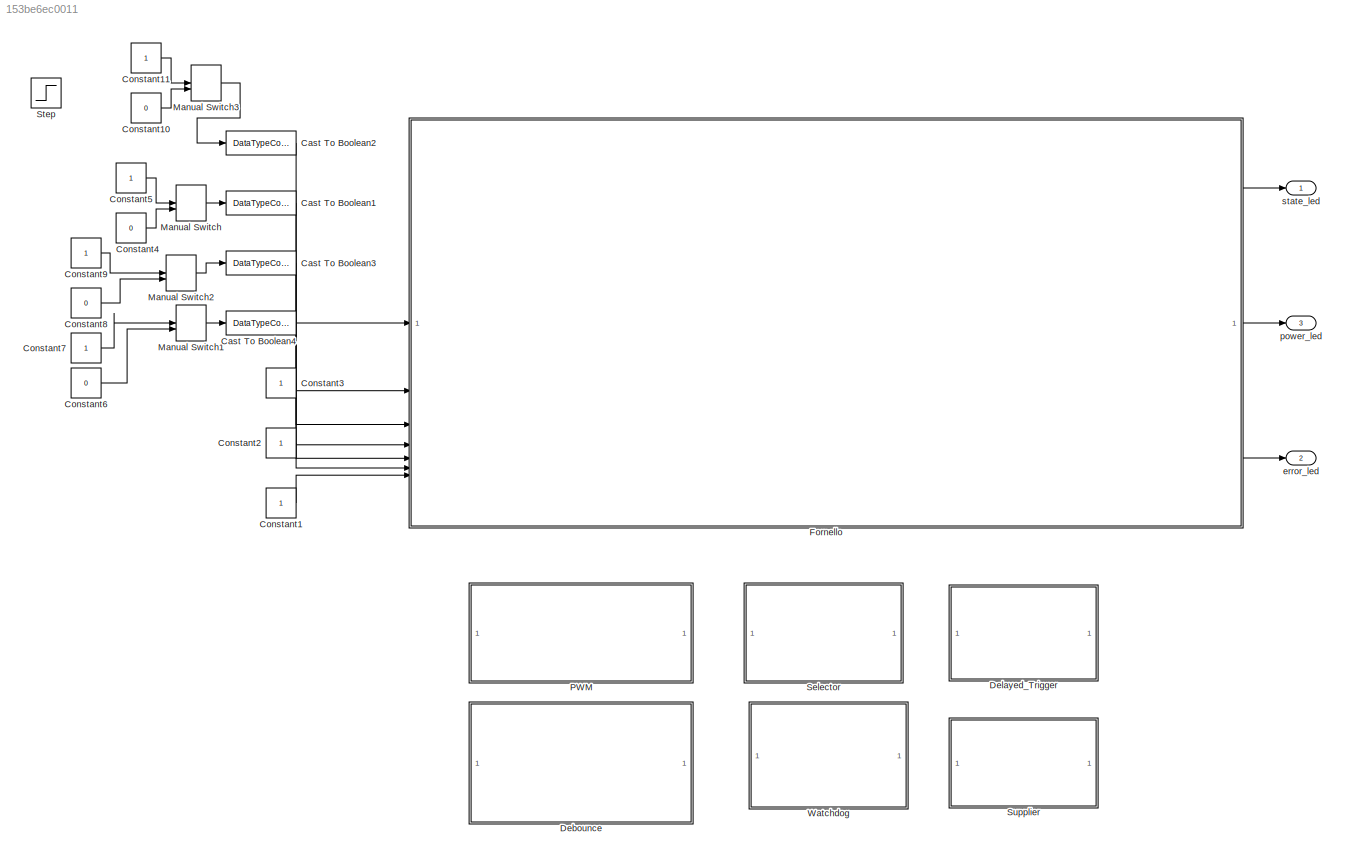
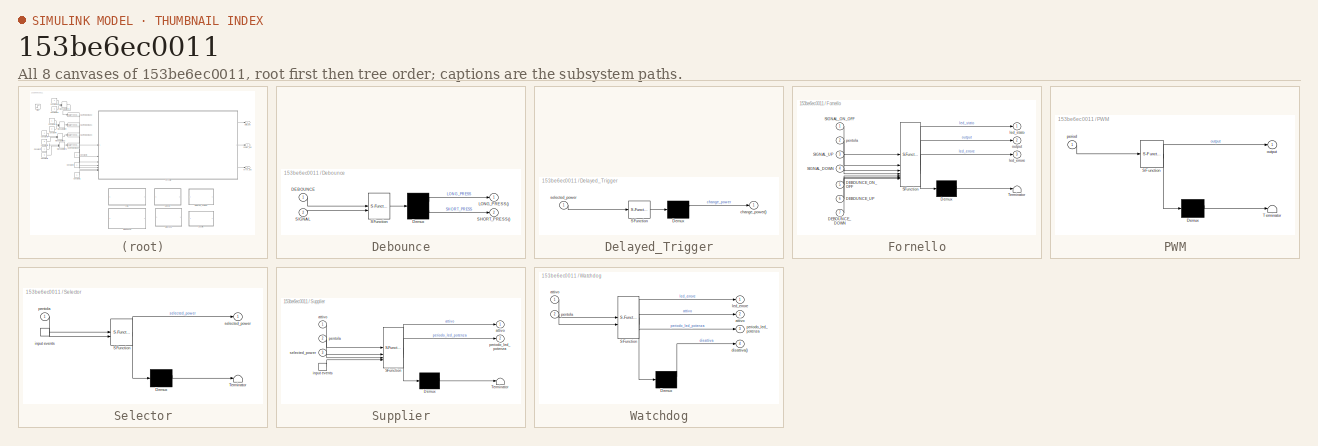
[diagram: thumbnail index - all 8 canvases of the model, root first then tree order]
MODEL slx_153be6ec0011
KIND model
CONFIG AbsTol = auto
CONFIG EnableMultiTasking = off
CONFIG FixedStep = 0.01
CONFIG MaxStep = 0.01
CONFIG MinStep = auto
CONFIG RelTol = 1e-3
CONFIG SampleTimeConstraint = Unconstrained
CONFIG SolverName = FixedStepAuto
CONFIG StartTime = 0.0
CONFIG StopTime = 20.0
BLOCK [DataTypeConversion] Cast To Boolean1
  OutDataTypeStr = boolean
  RndMeth = Nearest
  SaturateOnIntegerOverflow = off
BLOCK [DataTypeConversion] Cast To Boolean2
  OutDataTypeStr = boolean
  RndMeth = Nearest
  SaturateOnIntegerOverflow = off
BLOCK [DataTypeConversion] Cast To Boolean3
  OutDataTypeStr = boolean
  RndMeth = Nearest
  SaturateOnIntegerOverflow = off
BLOCK [DataTypeConversion] Cast To Boolean4
  OutDataTypeStr = boolean
  RndMeth = Nearest
  SaturateOnIntegerOverflow = off
BLOCK [Constant] Constant1
BLOCK [Constant] Constant10
  Value = 0
BLOCK [Constant] Constant11
BLOCK [Constant] Constant2
BLOCK [Constant] Constant3
BLOCK [Constant] Constant4
  Value = 0
BLOCK [Constant] Constant5
BLOCK [Constant] Constant6
  Value = 0
BLOCK [Constant] Constant7
BLOCK [Constant] Constant8
  Value = 0
BLOCK [Constant] Constant9
BLOCK [SubSystem] Debounce
  ErrorFcn = Stateflow.Translate.translate
  PermitHierarchicalResolution = ExplicitOnly
  SFBlockType = Chart
  TreatAsAtomicUnit = on
BLOCK [Demux] Debounce/ Demux 
  Outputs = 2
BLOCK [S-Function] Debounce/ SFunction 
  EnableBusSupport = on
  FunctionName = sf_sfun
  PortCounts = [2 1]
  SFcnIsStateOwnerBlock = off
  SFunctionDeploymentMode = off
  Tag = Stateflow S-Function 7
BLOCK [Inport] Debounce/DEBOUNCE
BLOCK [Outport] Debounce/LONG_PRESS()
BLOCK [Outport] Debounce/SHORT_PRESS()
  Port = 2
BLOCK [Inport] Debounce/SIGNAL
  Port = 2
BLOCK [SubSystem] Delayed_Trigger
  ErrorFcn = Stateflow.Translate.translate
  PermitHierarchicalResolution = ExplicitOnly
  SFBlockType = Chart
  TreatAsAtomicUnit = on
BLOCK [Demux] Delayed_Trigger/ Demux 
  Outputs = 1
BLOCK [S-Function] Delayed_Trigger/ SFunction 
  EnableBusSupport = on
  FunctionName = sf_sfun
  PortCounts = [1 1]
  SFcnIsStateOwnerBlock = off
  SFunctionDeploymentMode = off
  Tag = Stateflow S-Function 1
BLOCK [Outport] Delayed_Trigger/change_power()
BLOCK [Inport] Delayed_Trigger/selected_power
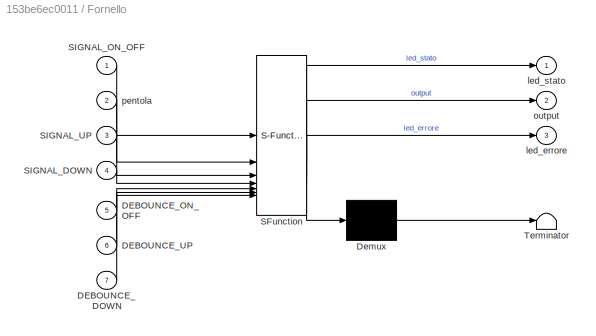
BLOCK [SubSystem] Fornello
  ErrorFcn = Stateflow.Translate.translate
  PermitHierarchicalResolution = ExplicitOnly
  SFBlockType = Chart
  TreatAsAtomicUnit = on
BLOCK [Demux] Fornello/ Demux 
  Outputs = 1
BLOCK [S-Function] Fornello/ SFunction 
  EnableBusSupport = on
  FunctionName = sf_sfun
  PortCounts = [7 4]
  SFcnIsStateOwnerBlock = off
  SFunctionDeploymentMode = off
  Tag = Stateflow S-Function 2
BLOCK [Terminator] Fornello/ Terminator 
BLOCK [Inport] Fornello/DEBOUNCE_DOWN
  Port = 7
BLOCK [Inport] Fornello/DEBOUNCE_ON_OFF
  Port = 5
BLOCK [Inport] Fornello/DEBOUNCE_UP
  Port = 6
BLOCK [Inport] Fornello/SIGNAL_DOWN
  Port = 4
BLOCK [Inport] Fornello/SIGNAL_ON_OFF
BLOCK [Inport] Fornello/SIGNAL_UP
  Port = 3
BLOCK [Outport] Fornello/led_errore
  Port = 3
BLOCK [Outport] Fornello/led_stato
BLOCK [Outport] Fornello/output
  Port = 2
BLOCK [Inport] Fornello/pentola
  Port = 2
BLOCK [ManualSwitch] Manual Switch
BLOCK [ManualSwitch] Manual Switch1
BLOCK [ManualSwitch] Manual Switch2
BLOCK [ManualSwitch] Manual Switch3
BLOCK [SubSystem] PWM
  ErrorFcn = Stateflow.Translate.translate
  PermitHierarchicalResolution = ExplicitOnly
  SFBlockType = Chart
  TreatAsAtomicUnit = on
BLOCK [Demux] PWM/ Demux 
  Outputs = 1
BLOCK [S-Function] PWM/ SFunction 
  EnableBusSupport = on
  FunctionName = sf_sfun
  PortCounts = [1 2]
  SFcnIsStateOwnerBlock = off
  SFunctionDeploymentMode = off
  Tag = Stateflow S-Function 6
BLOCK [Terminator] PWM/ Terminator 
BLOCK [Outport] PWM/output
BLOCK [Inport] PWM/period
BLOCK [SubSystem] Selector
  ErrorFcn = Stateflow.Translate.translate
  PermitHierarchicalResolution = ExplicitOnly
  SFBlockType = Chart
  TreatAsAtomicUnit = on
BLOCK [Demux] Selector/ Demux 
  Outputs = 1
BLOCK [S-Function] Selector/ SFunction 
  EnableBusSupport = on
  FunctionName = sf_sfun
  PortCounts = [2 2]
  SFcnIsStateOwnerBlock = off
  SFunctionDeploymentMode = off
  Tag = Stateflow S-Function 5
BLOCK [Terminator] Selector/ Terminator 
BLOCK [TriggerPort] Selector/input events
  ShowOutputPort = on
  StatesWhenEnabling = held
  TriggerType = function-call
  VariantControl = (inherit)
BLOCK [Inport] Selector/pentola
BLOCK [Outport] Selector/selected_power
BLOCK [Step] Step
  SampleTime = 0
  Time = 0
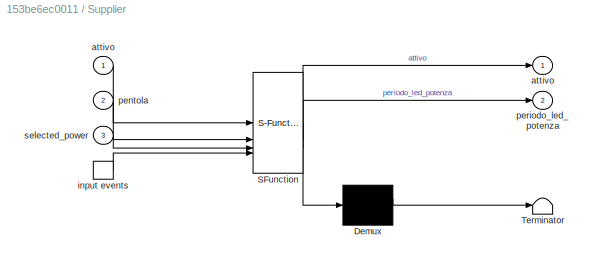
BLOCK [SubSystem] Supplier
  ErrorFcn = Stateflow.Translate.translate
  PermitHierarchicalResolution = ExplicitOnly
  SFBlockType = Chart
  TreatAsAtomicUnit = on
BLOCK [Demux] Supplier/ Demux 
  Outputs = 1
BLOCK [S-Function] Supplier/ SFunction 
  EnableBusSupport = on
  FunctionName = sf_sfun
  PortCounts = [4 3]
  SFcnIsStateOwnerBlock = off
  SFunctionDeploymentMode = off
  Tag = Stateflow S-Function 4
BLOCK [Terminator] Supplier/ Terminator 
BLOCK [Outport] Supplier/attivo
BLOCK [Inport] Supplier/attivo 
BLOCK [TriggerPort] Supplier/input events
  ShowOutputPort = on
  StatesWhenEnabling = held
  TriggerType = function-call
  VariantControl = (inherit)
BLOCK [Inport] Supplier/pentola
  Port = 2
BLOCK [Outport] Supplier/periodo_led_potenza
  Port = 2
BLOCK [Inport] Supplier/selected_power
  Port = 3
BLOCK [SubSystem] Watchdog
  ErrorFcn = Stateflow.Translate.translate
  PermitHierarchicalResolution = ExplicitOnly
  SFBlockType = Chart
  TreatAsAtomicUnit = on
BLOCK [Demux] Watchdog/ Demux 
  Outputs = 1
BLOCK [S-Function] Watchdog/ SFunction 
  EnableBusSupport = on
  FunctionName = sf_sfun
  PortCounts = [2 4]
  SFcnIsStateOwnerBlock = off
  SFunctionDeploymentMode = off
  Tag = Stateflow S-Function 3
BLOCK [Outport] Watchdog/attivo
  Port = 2
BLOCK [Inport] Watchdog/attivo 
BLOCK [Outport] Watchdog/disattiva()
  Port = 4
BLOCK [Outport] Watchdog/led_errore
BLOCK [Inport] Watchdog/pentola
  Port = 2
BLOCK [Outport] Watchdog/periodo_led_potenza
  Port = 3
BLOCK [Outport] error_led
  Port = 2
BLOCK [Outport] power_led
  Port = 3
BLOCK [Outport] state_led
LINE Cast To Boolean1:1 -> Fornello:2
LINE Cast To Boolean2:1 -> Fornello:1
LINE Cast To Boolean3:1 -> Fornello:3
LINE Cast To Boolean4:1 -> Fornello:4
LINE Constant10:1 -> Manual Switch3:2
LINE Constant11:1 -> Manual Switch3:1
LINE Constant1:1 -> Fornello:7
LINE Constant2:1 -> Fornello:6
LINE Constant3:1 -> Fornello:5
LINE Constant4:1 -> Manual Switch:2
LINE Constant5:1 -> Manual Switch:1
LINE Constant6:1 -> Manual Switch1:2
LINE Constant7:1 -> Manual Switch1:1
LINE Constant8:1 -> Manual Switch2:2
LINE Constant9:1 -> Manual Switch2:1
LINE Fornello:1 -> state_led:1
LINE Fornello:2 -> power_led:1
LINE Fornello:3 -> error_led:1
LINE Manual Switch1:1 -> Cast To Boolean4:1
LINE Manual Switch2:1 -> Cast To Boolean3:1
LINE Manual Switch3:1 -> Cast To Boolean2:1
LINE Manual Switch:1 -> Cast To Boolean1:1
CHART Test Assessment Block states=18 transitions=57
  STATE_LABEL 'Pressione_Pulsante_Lunga'
  STATE_LABEL 'Run'
  STATE_LABEL 'Verify_S1Init\nverify(LONG_PRESS==false & SHORT_PRESS==false)'
  STATE_LABEL 'Verify_S1ButtonLongPressed\nverify(LONG_PRESS==false & SHORT_PRESS==false);'
  STATE_LABEL 'Verify_S1LongPressedEvent\nverify((elapsed<0.01 & LONG_PRESS==true & SHORT_PRESS==false) || (elapsed>=0.01 & LONG_PRESS==false & SHORT_PRESS==false));'
  STATE_LABEL 'Step_end_1'
  STATE_LABEL '[Ts_Active_Step_In==Test_Sequence_Active_Step_Enum1.S1_Init\n]'
  STATE_LABEL '[~in(Pressione_Pulsante_Lunga.Run.Verify_S1Init)]'
  STATE_LABEL '[Ts_Active_Step_In==Test_Sequence_Active_Step_Enum1.S1_Button_long_pressed\n]'
  STATE_LABEL '[~in(Pressione_Pulsante_Lunga.Run.Verify_S1ButtonLongPressed)]'
  STATE_LABEL '[Ts_Active_Step_In==Test_Sequence_Active_Step_Enum1.S1_Button_Released\n]'
  STATE_LABEL '[~in(Pressione_Pulsante_Lunga.Run.Verify_S1LongPressedEvent)]'
  STATE_LABEL '[~in(Pressione_Pulsante_Lunga.Run.Step_end_1)]'
  STATE_LABEL 'Run'
  STATE_LABEL 'Verify_S1Init\nverify(LONG_PRESS==false & SHORT_PRESS==false)'
  STATE_LABEL 'Verify_S1ButtonLongPressed\nverify(LONG_PRESS==false & SHORT_PRESS==false);'
  STATE_LABEL 'Verify_S1LongPressedEvent\nverify((elapsed<0.01 & LONG_PRESS==true & SHORT_PRESS==false) || (elapsed>=0.01 & LONG_PRESS==false & SHORT_PRESS==false));'
  STATE_LABEL 'Step_end_1'
  STATE_LABEL '[Ts_Active_Step_In==Test_Sequence_Active_Step_Enum1.S1_Init\n]'
  STATE_LABEL '[~in(Pressione_Pulsante_Lunga.Run.Verify_S1Init)]'
  STATE_LABEL '[Ts_Active_Step_In==Test_Sequence_Active_Step_Enum1.S1_Button_long_pressed\n]'
  STATE_LABEL '[~in(Pressione_Pulsante_Lunga.Run.Verify_S1ButtonLongPressed)]'
  STATE_LABEL '[Ts_Active_Step_In==Test_Sequence_Active_Step_Enum1.S1_Button_Released\n]'
  STATE_LABEL '[~in(Pressione_Pulsante_Lunga.Run.Verify_S1LongPressedEvent)]'
  STATE_LABEL '[~in(Pressione_Pulsante_Lunga.Run.Step_end_1)]'
  STATE_LABEL 'Verify_S1Init\nverify(LONG_PRESS==false & SHORT_PRESS==false)'
  STATE_LABEL 'Verify_S1ButtonLongPressed\nverify(LONG_PRESS==false & SHORT_PRESS==false);'
  STATE_LABEL 'Verify_S1LongPressedEvent\nverify((elapsed<0.01 & LONG_PRESS==true & SHORT_PRESS==false) || (elapsed>=0.01 & LONG_PRESS==false & SHORT_PRESS==false));'
  STATE_LABEL 'Step_end_1'
  STATE_LABEL 'Pressione_Pulsante_Corta'
  STATE_LABEL 'Run'
  STATE_LABEL 'Verify_S2Init\nverify(LONG_PRESS==false & SHORT_PRESS==false)'
  STATE_LABEL 'Verify_S2ButtonShortPressed\nverify(LONG_PRESS==false & SHORT_PRESS==false);'
  STATE_LABEL 'Verify_S2ShortPressedEvent\nverify((elapsed<0.01 & LONG_PRESS==false & SHORT_PRESS==true) || (elapsed>=0.01 & LONG_PRESS==false & SHORT_PRESS==false));'
  STATE_LABEL 'Step_end_2'
  STATE_LABEL '[Ts_Active_Step_In==Test_Sequence_Active_Step_Enum1.S2_Init\n]'
  STATE_LABEL '[~in(Pressione_Pulsante_Corta.Run.Verify_S2Init)]'
  STATE_LABEL '[Ts_Active_Step_In==Test_Sequence_Active_Step_Enum1.S2_Button_short_pressed\n]'
  STATE_LABEL '[~in(Pressione_Pulsante_Corta.Run.Verify_S2ButtonShortPressed)]'
  STATE_LABEL '[Ts_Active_Step_In==Test_Sequence_Active_Step_Enum1.S2_Button_Released\n]'
CHART Button states=4 transitions=7
  STATE_LABEL 'BUTTON'
  STATE_LABEL 'HIGH'
  STATE_LABEL 'LOW_2'
  STATE_LABEL 'LOW'
  STATE_LABEL '[SIGNAL == true]'
  STATE_LABEL '[SIGNAL == false]'
  STATE_LABEL 'before(DEBOUNCE,sec)[SIGNAL == true]/{send(SHORT_PRESS)}'
  STATE_LABEL 'after(DEBOUNCE,sec)[SIGNAL == true]/{send(LONG_PRESS)}'
  STATE_LABEL 'after(DEBOUNCE,sec)[SIGNAL == false]/{send(LONG_PRESS)}'
  STATE_LABEL 'HIGH'
  STATE_LABEL 'LOW_2'
  STATE_LABEL 'LOW'
CHART Test Sequence states=15 transitions=15
  STATE_LABEL 'Pressione_Pulsante_Lunga'
  STATE_LABEL 'S1_Init\nDEBOUNCE = 1;\nSIGNAL = true;'
  STATE_LABEL 'S1_Button_long_pressed\nDEBOUNCE = 1;\nSIGNAL = false;'
  STATE_LABEL 'S1_Button_Released\nDEBOUNCE = 1;\nSIGNAL = true;'
  STATE_LABEL 'S1_End'
  STATE_LABEL '[\ntrue\n]'
  STATE_LABEL '[\nafter(1,sec)\n]'
  STATE_LABEL '[\nafter(2,sec)\n]'
  STATE_LABEL 'S1_Init\nDEBOUNCE = 1;\nSIGNAL = true;'
  STATE_LABEL 'S1_Button_long_pressed\nDEBOUNCE = 1;\nSIGNAL = false;'
  STATE_LABEL 'S1_Button_Released\nDEBOUNCE = 1;\nSIGNAL = true;'
  STATE_LABEL 'S1_End'
  STATE_LABEL 'Pressione_Pulsante_Corta'
  STATE_LABEL 'S2_Init\nDEBOUNCE = 1;\nSIGNAL = true;'
  STATE_LABEL 'S2_Button_short_pressed\nDEBOUNCE = 1;\nSIGNAL = false;'
  STATE_LABEL 'S2_Button_Released\nDEBOUNCE = 1;\nSIGNAL = true;'
  STATE_LABEL 'S2_End'
  STATE_LABEL '[\ntrue\n]'
  STATE_LABEL '[\nafter(0.5,sec)\n]'
  STATE_LABEL '[\nafter(2,sec)\n]'
  STATE_LABEL 'S2_Init\nDEBOUNCE = 1;\nSIGNAL = true;'
  STATE_LABEL 'S2_Button_short_pressed\nDEBOUNCE = 1;\nSIGNAL = false;'
  STATE_LABEL 'S2_Button_Released\nDEBOUNCE = 1;\nSIGNAL = true;'
  STATE_LABEL 'S2_End'
  STATE_LABEL 'Caso_Limite'
  STATE_LABEL 'S3_Init\nDEBOUNCE = 1;\nSIGNAL = true;'
  STATE_LABEL 'S3_Button_long_pressed\nDEBOUNCE = 1;\nSIGNAL = false;'
  STATE_LABEL 'S3_Button_Released\nDEBOUNCE = 1;\nSIGNAL = true;'
  STATE_LABEL 'S3_End'
  STATE_LABEL '[\ntrue\n]'
  STATE_LABEL '[\nafter(2,sec)\n]'
  STATE_LABEL '[\nafter(2,sec)\n]'
  STATE_LABEL 'S3_Init\nDEBOUNCE = 1;\nSIGNAL = true;'
  STATE_LABEL 'S3_Button_long_pressed\nDEBOUNCE = 1;\nSIGNAL = false;'
  STATE_LABEL 'S3_Button_Released\nDEBOUNCE = 1;\nSIGNAL = true;'
  STATE_LABEL 'S3_End'
CHART Test Assessment Block states=9 transitions=31
  STATE_LABEL 'Scenario_1'
  STATE_LABEL 'Run'
  STATE_LABEL 'VerifyS1Init\nverify(change_power==false)'
  STATE_LABEL 'VerifyS1Set300\nverify(change_power==false)'
  STATE_LABEL 'VerifyS1Set500\nverify(change_power==false)'
  STATE_LABEL 'VerifyS1idle\nverify((elapsed <0.01 & change_power==true) || (elapsed>=0.01 & change_power==false))'
  STATE_LABEL 'VerifyS1set300_2\nverify(change_power==false)'
  STATE_LABEL 'VerifyS1idle1\nverify((elapsed <0.01 & change_power==true) || (elapsed>=0.01 & change_power==false))'
  STATE_LABEL 'step_S1End'
  STATE_LABEL '[Ts_Active_Step_In==Test_Sequence_Active_Step_Enum.S1_Init\n]'
  STATE_LABEL '[~in(Scenario_1.Run.VerifyS1Init)]'
  STATE_LABEL '[Ts_Active_Step_In==Test_Sequence_Active_Step_Enum.S1_set300\n]'
  STATE_LABEL '[~in(Scenario_1.Run.VerifyS1Set300)]'
  STATE_LABEL '[Ts_Active_Step_In==Test_Sequence_Active_Step_Enum.S1_set500\n]'
  STATE_LABEL '[~in(Scenario_1.Run.VerifyS1Set500)]'
  STATE_LABEL '[Ts_Active_Step_In==Test_Sequence_Active_Step_Enum.S1_idle\n]'
  STATE_LABEL '[~in(Scenario_1.Run.VerifyS1idle)]'
  STATE_LABEL '[Ts_Active_Step_In==Test_Sequence_Active_Step_Enum.S1_set300_2\n]'
  STATE_LABEL '[~in(Scenario_1.Run.VerifyS1set300_2)]'
  STATE_LABEL '[Ts_Active_Step_In==Test_Sequence_Active_Step_Enum.S1_idle_2\n]'
  STATE_LABEL '[~in(Scenario_1.Run.VerifyS1idle1)]'
  STATE_LABEL '[~in(Scenario_1.Run.step_S1End)]'
  STATE_LABEL 'Run'
  STATE_LABEL 'VerifyS1Init\nverify(change_power==false)'
  STATE_LABEL 'VerifyS1Set300\nverify(change_power==false)'
  STATE_LABEL 'VerifyS1Set500\nverify(change_power==false)'
  STATE_LABEL 'VerifyS1idle\nverify((elapsed <0.01 & change_power==true) || (elapsed>=0.01 & change_power==false))'
  STATE_LABEL 'VerifyS1set300_2\nverify(change_power==false)'
  STATE_LABEL 'VerifyS1idle1\nverify((elapsed <0.01 & change_power==true) || (elapsed>=0.01 & change_power==false))'
  STATE_LABEL 'step_S1End'
  STATE_LABEL '[Ts_Active_Step_In==Test_Sequence_Active_Step_Enum.S1_Init\n]'
  STATE_LABEL '[~in(Scenario_1.Run.VerifyS1Init)]'
  STATE_LABEL '[Ts_Active_Step_In==Test_Sequence_Active_Step_Enum.S1_set300\n]'
  STATE_LABEL '[~in(Scenario_1.Run.VerifyS1Set300)]'
  STATE_LABEL '[Ts_Active_Step_In==Test_Sequence_Active_Step_Enum.S1_set500\n]'
  STATE_LABEL '[~in(Scenario_1.Run.VerifyS1Set500)]'
  STATE_LABEL '[Ts_Active_Step_In==Test_Sequence_Active_Step_Enum.S1_idle\n]'
  STATE_LABEL '[~in(Scenario_1.Run.VerifyS1idle)]'
  STATE_LABEL '[Ts_Active_Step_In==Test_Sequence_Active_Step_Enum.S1_set300_2\n]'
  STATE_LABEL '[~in(Scenario_1.Run.VerifyS1set300_2)]'
CHART Test Sequence states=8 transitions=8
  STATE_LABEL 'Scenario_1'
  STATE_LABEL 'S1_Init\nselected_power = 0;'
  STATE_LABEL 'S1_set300\nselected_power = 300;'
  STATE_LABEL 'S1_set500\nselected_power = 500;'
  STATE_LABEL 'S1_idle\nselected_power = 500;'
  STATE_LABEL 'S1_set300_2\nselected_power = 300;'
  STATE_LABEL 'S1_idle_2\nselected_power = 300;'
  STATE_LABEL 'S1_End'
  STATE_LABEL '[\nafter(1,sec)\n]'
  STATE_LABEL '[\nafter(3,sec)\n]'
  STATE_LABEL '[\nafter(5,sec)\n]'
  STATE_LABEL '[\nafter(1,sec)\n]'
  STATE_LABEL '[\nafter(5,sec)\n]'
  STATE_LABEL '[\nafter(1,sec)\n]'
  STATE_LABEL 'S1_Init\nselected_power = 0;'
  STATE_LABEL 'S1_set300\nselected_power = 300;'
  STATE_LABEL 'S1_set500\nselected_power = 500;'
  STATE_LABEL 'S1_idle\nselected_power = 500;'
  STATE_LABEL 'S1_set300_2\nselected_power = 300;'
  STATE_LABEL 'S1_idle_2\nselected_power = 300;'
  STATE_LABEL 'S1_End'
CHART Test Assessment Block states=6 transitions=19
  STATE_LABEL 'Scenario_1'
  STATE_LABEL 'Run'
  STATE_LABEL 'VerifyPeriod0\nverify(output==false);'
  STATE_LABEL 'VerifyPeriod1\nverify((elapsed>=0 & elapsed<1 & output==false) || (elapsed>=1 & elapsed<2 & output==true) || (elapsed>=2 & elapsed<3 & output==false) || (elapsed>=3 & elapsed<4 & output==true) || (elapsed>=4 & output==false));'  <repeated x3 — deduplicated; at blocks: Test Assessment Block>
  STATE_LABEL 'VerifyPeriod05\nverify((elapsed>=0 & elapsed<0.5 & output==true) || (elapsed>=0.5 & elapsed<1 & output==false) || (elapsed>=1 & elapsed<1.5 & output==true) || (elapsed>=1.5 & elapsed<2 & output==false) || (elapsed>=2 & elapsed<2.5 & output==true) || (elapsed>=2.5 & output==false));'  <repeated x3 — deduplicated; at blocks: Test Assessment Block>
  STATE_LABEL 'step_end'
  STATE_LABEL '[Ts_Active_Step_In==Test_Sequence_Active_Step_Enum.Init\n]'
  STATE_LABEL '[~in(Scenario_1.Run.VerifyPeriod0)]'
  STATE_LABEL '[Ts_Active_Step_In==Test_Sequence_Active_Step_Enum.Period_1\n]'
  STATE_LABEL '[~in(Scenario_1.Run.VerifyPeriod1)]'
  STATE_LABEL '[Ts_Active_Step_In==Test_Sequence_Active_Step_Enum.Period_0_5\n]'
  STATE_LABEL '[~in(Scenario_1.Run.VerifyPeriod05)]'
  STATE_LABEL '[~in(Scenario_1.Run.step_end)]'
  STATE_LABEL 'Run'
  STATE_LABEL 'VerifyPeriod0\nverify(output==false);'
  STATE_LABEL 'step_end'
  STATE_LABEL '[Ts_Active_Step_In==Test_Sequence_Active_Step_Enum.Init\n]'
  STATE_LABEL '[~in(Scenario_1.Run.VerifyPeriod0)]'
  STATE_LABEL '[Ts_Active_Step_In==Test_Sequence_Active_Step_Enum.Period_1\n]'
  STATE_LABEL '[~in(Scenario_1.Run.VerifyPeriod1)]'
  STATE_LABEL '[Ts_Active_Step_In==Test_Sequence_Active_Step_Enum.Period_0_5\n]'
  STATE_LABEL '[~in(Scenario_1.Run.VerifyPeriod05)]'
  STATE_LABEL '[~in(Scenario_1.Run.step_end)]'
  STATE_LABEL 'VerifyPeriod0\nverify(output==false);'
  STATE_LABEL 'step_end'
CHART Test Sequence states=5 transitions=5
  STATE_LABEL 'Scenario_1'
  STATE_LABEL 'Init\nperiod=0;'
  STATE_LABEL 'Period_1\nperiod=1;'
  STATE_LABEL 'Period_0_5\nperiod=0.5;'
  STATE_LABEL 'End'
  STATE_LABEL '[\ntrue\n]'
  STATE_LABEL '[\nafter(5,sec)\n]'
  STATE_LABEL '[\nafter(3,sec)\n]'
  STATE_LABEL 'Init\nperiod=0;'
  STATE_LABEL 'Period_1\nperiod=1;'
  STATE_LABEL 'Period_0_5\nperiod=0.5;'
  STATE_LABEL 'End'
CHART Test Assessment Block states=47 transitions=168
  STATE_LABEL 'Selezione_all_up_down'
  STATE_LABEL 'Run'
  STATE_LABEL 'Verify_S1Init\nverify(selected_power==0);'
  STATE_LABEL 'Verify_S1Selected300up\nverify(selected_power==300);'
  STATE_LABEL 'Verify_S1Selected500up\nverify(selected_power==500);'
  STATE_LABEL 'Verify_S1Selected1000up\nverify(selected_power==1000);'
  STATE_LABEL 'Verify_S1Selected1500up\nverify(selected_power==1500);'
  STATE_LABEL 'Verify_S1Selected1000down\nverify(selected_power==1000);'
  STATE_LABEL 'Verify_S1Selected500down\nverify(selected_power==500);'
  STATE_LABEL 'Verify_S1Selected300down\nverify(selected_power==300);'
  STATE_LABEL 'Verify_S1Selected0down\nverify(selected_power==0);'
  STATE_LABEL 'step_S1_end'
  STATE_LABEL '[Ts_Active_Step_In==Test_Sequence_Active_Step_Enum.S1_Init\n]'
  STATE_LABEL '[~in(Selezione_all_up_down.Run.Verify_S1Init)]'
  STATE_LABEL '[Ts_Active_Step_In==Test_Sequence_Active_Step_Enum.S1_wait1\n]'
  STATE_LABEL '[~in(Selezione_all_up_down.Run.Verify_S1Selected300up)]'
  STATE_LABEL '[Ts_Active_Step_In==Test_Sequence_Active_Step_Enum.S1_wait2\n]'
  STATE_LABEL '[~in(Selezione_all_up_down.Run.Verify_S1Selected500up)]'
  STATE_LABEL '[Ts_Active_Step_In==Test_Sequence_Active_Step_Enum.S1_wait3\n]'
  STATE_LABEL '[~in(Selezione_all_up_down.Run.Verify_S1Selected1000up)]'
  STATE_LABEL '[Ts_Active_Step_In==Test_Sequence_Active_Step_Enum.S1_wait4\n]'
  STATE_LABEL '[~in(Selezione_all_up_down.Run.Verify_S1Selected1500up)]'
  STATE_LABEL '[Ts_Active_Step_In==Test_Sequence_Active_Step_Enum.S1_wait5\n]'
  STATE_LABEL '[~in(Selezione_all_up_down.Run.Verify_S1Selected1000down)]'
  STATE_LABEL '[Ts_Active_Step_In==Test_Sequence_Active_Step_Enum.S1_wait6\n]'
  STATE_LABEL '[~in(Selezione_all_up_down.Run.Verify_S1Selected500down)]'
  STATE_LABEL '[Ts_Active_Step_In==Test_Sequence_Active_Step_Enum.S1_wait7\n]'
  STATE_LABEL '[~in(Selezione_all_up_down.Run.Verify_S1Selected300down)]'
  STATE_LABEL '[Ts_Active_Step_In==Test_Sequence_Active_Step_Enum.S1_wait8\n]'
  STATE_LABEL '[~in(Selezione_all_up_down.Run.Verify_S1Selected0down)]'
  STATE_LABEL '[~in(Selezione_all_up_down.Run.step_S1_end)]'
  STATE_LABEL 'Run'
  STATE_LABEL 'Verify_S1Init\nverify(selected_power==0);'
  STATE_LABEL 'Verify_S1Selected300up\nverify(selected_power==300);'
  STATE_LABEL 'Verify_S1Selected500up\nverify(selected_power==500);'
  STATE_LABEL 'Verify_S1Selected1000up\nverify(selected_power==1000);'
  STATE_LABEL 'Verify_S1Selected1500up\nverify(selected_power==1500);'
  STATE_LABEL 'Verify_S1Selected1000down\nverify(selected_power==1000);'
  STATE_LABEL 'Verify_S1Selected500down\nverify(selected_power==500);'
  STATE_LABEL 'Verify_S1Selected300down\nverify(selected_power==300);'
CHART Chart states=1 transitions=1
  STATE_LABEL 'trig\non every(1,tick): send(trigger_event)'
CHART Test Sequence states=74 transitions=74
  STATE_LABEL 'Selezione_all_up_down'
  STATE_LABEL 'S1_Init\npentola = false;'
  STATE_LABEL 'S1_Selected_300_up\npentola = false;\npulsante_up();'
  STATE_LABEL 'S1_wait1\npentola = false;'
  STATE_LABEL 'S1_Selected_500_up\npentola = false;\npulsante_up();'
  STATE_LABEL 'S1_wait2\npentola = false;'
  STATE_LABEL 'S1_Selected_1000_up\npentola = false;\npulsante_up();'
  STATE_LABEL 'S1_wait3\npentola = false;'
  STATE_LABEL 'S1_Selected_1500_up\npentola = false;\npulsante_up();'
  STATE_LABEL 'S1_wait4\npentola = false;'
  STATE_LABEL 'S1_Selected_1000_down\npentola = false;\npulsante_down();'
  STATE_LABEL 'S1_wait5\npentola = false;'
  STATE_LABEL 'S1_Selected_500_down\npentola = false;\npulsante_down();'
  STATE_LABEL 'S1_wait6\npentola = false;'
  STATE_LABEL 'S1_Selected_300_down\npentola = false;\npulsante_down();'
  STATE_LABEL 'S1_wait7\npentola = false;'
  STATE_LABEL 'S1_Selected_0_down\npentola = false;\npulsante_down();'
  STATE_LABEL 'S1_wait8\npentola = false;'
  STATE_LABEL 'S1_End'
  STATE_LABEL '[\nafter(1,sec)\n]'
  STATE_LABEL '[\ntrue\n]'
  STATE_LABEL '[\nafter(1,sec)\n]'
  STATE_LABEL '[\ntrue\n]'
  STATE_LABEL '[\nafter(1,sec)\n]'
  STATE_LABEL '[\ntrue\n]'
  STATE_LABEL '[\nafter(1,sec)\n]'
  STATE_LABEL '[\ntrue\n]'
  STATE_LABEL '[\nafter(1,sec)\n]'
  STATE_LABEL '[\ntrue\n]'
  STATE_LABEL '[\nafter(1,sec)\n]'
  STATE_LABEL '[\ntrue\n]'
  STATE_LABEL '[\nafter(1,sec)\n]'
  STATE_LABEL '[\ntrue\n]'
  STATE_LABEL '[\nafter(1,sec)\n]'
  STATE_LABEL '[\ntrue\n]'
  STATE_LABEL '[\nafter(1,sec)\n]'
  STATE_LABEL 'S1_Init\npentola = false;'
  STATE_LABEL 'S1_Selected_300_up\npentola = false;\npulsante_up();'
  STATE_LABEL 'S1_wait1\npentola = false;'
  STATE_LABEL 'S1_Selected_500_up\npentola = false;\npulsante_up();'
CHART Test Assessment Block states=11 transitions=39
  STATE_LABEL 'Scenario_1'
  STATE_LABEL 'Run'
  STATE_LABEL 'VerifyS1Init\nverify((elapsed<0.02 & attivo==false) || (elapsed>=0.02 & attivo==true) & periodo_led_potenza==0)'
  STATE_LABEL 'VerifyS1Request1\nverify(periodo_led_potenza==2 & attivo==true)'
  STATE_LABEL 'VerifyS1Request2\nverify(periodo_led_potenza==1 & attivo==true)'
  STATE_LABEL 'VerifyS1Request3\nverify(periodo_led_potenza==0.5 & attivo==true)'
  STATE_LABEL 'VerifyS1Request4\nverify(periodo_led_potenza==0.25 & attivo==true)'
  STATE_LABEL 'VerifyS1Request5\nverify(periodo_led_potenza==0.25 & attivo==true)'
  STATE_LABEL 'VerifyS1Request6\nverify((elapsed<0.01 & periodo_led_potenza==0.25) || (elapsed>=0.01 & periodo_led_potenza==1) & attivo==true)'
  STATE_LABEL 'VerifyS1Request7\nverify((elapsed<0.01 & attivo==true) || (elapsed>=0.01 & attivo==false) & periodo_led_potenza==0)'
  STATE_LABEL 'step_S1End'
  STATE_LABEL '[Ts_Active_Step_In==Test_Sequence_Active_Step_Enum.S1_Init\n]'
  STATE_LABEL '[~in(Scenario_1.Run.VerifyS1Init)]'
  STATE_LABEL '[Ts_Active_Step_In==Test_Sequence_Active_Step_Enum.S1_Wait1\n]'
  STATE_LABEL '[~in(Scenario_1.Run.VerifyS1Request1)]'
  STATE_LABEL '[Ts_Active_Step_In==Test_Sequence_Active_Step_Enum.S1_Wait2\n]'
  STATE_LABEL '[~in(Scenario_1.Run.VerifyS1Request2)]'
  STATE_LABEL '[Ts_Active_Step_In==Test_Sequence_Active_Step_Enum.S1_Wait3\n]'
  STATE_LABEL '[~in(Scenario_1.Run.VerifyS1Request3)]'
  STATE_LABEL '[Ts_Active_Step_In==Test_Sequence_Active_Step_Enum.S1_Wait4\n]'
  STATE_LABEL '[~in(Scenario_1.Run.VerifyS1Request4)]'
  STATE_LABEL '[Ts_Active_Step_In==Test_Sequence_Active_Step_Enum.S1_Wait5\n]'
  STATE_LABEL '[~in(Scenario_1.Run.VerifyS1Request5)]'
  STATE_LABEL '[Ts_Active_Step_In==Test_Sequence_Active_Step_Enum.S1_Wait6\n]'
  STATE_LABEL '[~in(Scenario_1.Run.VerifyS1Request6)]'
  STATE_LABEL '[Ts_Active_Step_In==Test_Sequence_Active_Step_Enum.S1_Wait7\n]'
  STATE_LABEL '[~in(Scenario_1.Run.VerifyS1Request7)]'
  STATE_LABEL '[~in(Scenario_1.Run.step_S1End)]'
  STATE_LABEL 'Run'
  STATE_LABEL 'VerifyS1Init\nverify((elapsed<0.02 & attivo==false) || (elapsed>=0.02 & attivo==true) & periodo_led_potenza==0)'
  STATE_LABEL 'VerifyS1Request1\nverify(periodo_led_potenza==2 & attivo==true)'
  STATE_LABEL 'VerifyS1Request2\nverify(periodo_led_potenza==1 & attivo==true)'
  STATE_LABEL 'VerifyS1Request3\nverify(periodo_led_potenza==0.5 & attivo==true)'
  STATE_LABEL 'VerifyS1Request4\nverify(periodo_led_potenza==0.25 & attivo==true)'
  STATE_LABEL 'VerifyS1Request5\nverify(periodo_led_potenza==0.25 & attivo==true)'
  STATE_LABEL 'VerifyS1Request6\nverify((elapsed<0.01 & periodo_led_potenza==0.25) || (elapsed>=0.01 & periodo_led_potenza==1) & attivo==true)'
  STATE_LABEL 'VerifyS1Request7\nverify((elapsed<0.01 & attivo==true) || (elapsed>=0.01 & attivo==false) & periodo_led_potenza==0)'
  STATE_LABEL 'step_S1End'
  STATE_LABEL '[Ts_Active_Step_In==Test_Sequence_Active_Step_Enum.S1_Init\n]'
  STATE_LABEL '[~in(Scenario_1.Run.VerifyS1Init)]'
CHART Chart states=1 transitions=1
  STATE_LABEL 'trig\non every(1,tick): send(trigger_event)'
CHART Test Sequence states=16 transitions=16
  STATE_LABEL 'Scenario_1'
  STATE_LABEL 'S1_Init\nattivo = true;\npentola = false;\nselected_power = 300;'
  STATE_LABEL 'S1_Fire1\nattivo = true;\npentola = false;\nselected_power = 300;\nchange_power();'
  STATE_LABEL 'S1_Wait1\nattivo = true;\npentola = false;\nselected_power = 300;'
  STATE_LABEL 'S1_Fire2\nattivo = true;\npentola = false;\nselected_power = 500;\nchange_power();'
  STATE_LABEL 'S1_Wait2\nattivo = true;\npentola = false;\nselected_power = 500;'
  STATE_LABEL 'S1_Fire3\nattivo = true;\npentola = false;\nselected_power = 1000;\nchange_power();'
  STATE_LABEL 'S1_Wait3\nattivo = true;\npentola = false;\nselected_power = 1000;'
  STATE_LABEL 'S1_Fire4\nattivo = true;\npentola = false;\nselected_power = 1500;\nchange_power();'
  STATE_LABEL 'S1_Wait4\nattivo = true;\npentola = false;\nselected_power = 1500;'
  STATE_LABEL 'S1_Fire5\nattivo = true;\npentola = true;\nselected_power = 500;\nchange_power();'
  STATE_LABEL 'S1_Wait5\nattivo = true;\npentola = true;\nselected_power = 500;'
  STATE_LABEL 'S1_Wait6\nattivo = true;\npentola = false;\nselected_power = 500;'
  STATE_LABEL 'S1_Fire6\nattivo = false;\npentola = false;\nselected_power = 1000;\nchange_power();'
  STATE_LABEL 'S1_Wait7\nattivo = false;\npentola = false;\nselected_power = 0;'
  STATE_LABEL 'S1_End'
  STATE_LABEL '[\nafter(1,sec)\n]'
  STATE_LABEL '[\ntrue\n]'
  STATE_LABEL '[\nafter(1,sec)\n]'
  STATE_LABEL '[\ntrue\n]'
  STATE_LABEL '[\nafter(1,sec)\n]'
  STATE_LABEL '[\ntrue\n]'
  STATE_LABEL '[\nafter(1,sec)\n]'
  STATE_LABEL '[\ntrue\n]'
  STATE_LABEL '[\nafter(1,sec)\n]'
  STATE_LABEL '[\ntrue\n]'
  STATE_LABEL '[\nafter(1,sec)\n]'
  STATE_LABEL '[\nafter(1,sec)\n]'
  STATE_LABEL '[\ntrue\n]'
  STATE_LABEL '[\nafter(1,sec)\n]'
  STATE_LABEL 'S1_Init\nattivo = true;\npentola = false;\nselected_power = 300;'
  STATE_LABEL 'S1_Fire1\nattivo = true;\npentola = false;\nselected_power = 300;\nchange_power();'
  STATE_LABEL 'S1_Wait1\nattivo = true;\npentola = false;\nselected_power = 300;'
  STATE_LABEL 'S1_Fire2\nattivo = true;\npentola = false;\nselected_power = 500;\nchange_power();'
  STATE_LABEL 'S1_Wait2\nattivo = true;\npentola = false;\nselected_power = 500;'
  STATE_LABEL 'S1_Fire3\nattivo = true;\npentola = false;\nselected_power = 1000;\nchange_power();'
  STATE_LABEL 'S1_Wait3\nattivo = true;\npentola = false;\nselected_power = 1000;'
  STATE_LABEL 'S1_Fire4\nattivo = true;\npentola = false;\nselected_power = 1500;\nchange_power();'
  STATE_LABEL 'S1_Wait4\nattivo = true;\npentola = false;\nselected_power = 1500;'
  STATE_LABEL 'S1_Fire5\nattivo = true;\npentola = true;\nselected_power = 500;\nchange_power();'
CHART Supplier states=6 transitions=27
  STATE_LABEL 'SUPPLIER'
  STATE_LABEL 'NO_CHANGE_REQUESTED'
  STATE_LABEL 'Applying_0_power\nen: erogaPotenza(selected_power)'
  STATE_LABEL 'Applying_power\nen: erogaPotenza(selected_power)'
  STATE_LABEL 'PENDING_CHANGE'
  STATE_LABEL 'change_power'
  STATE_LABEL '[attivo == false]'
  STATE_LABEL '[pentola==false]'
  STATE_LABEL 'NO_CHANGE_REQUESTED'
  STATE_LABEL 'Applying_0_power\nen: erogaPotenza(selected_power)'
  STATE_LABEL 'Applying_power\nen: erogaPotenza(selected_power)'
  STATE_LABEL 'PENDING_CHANGE'
  STATE_LABEL 'erogaPotenza(power)'
  STATE_LABEL '{power = double(power)}'
  STATE_LABEL '[power == 0]'
  STATE_LABEL '{periodo_led_potenza=0;attivo=false}'
  STATE_LABEL '[power == 300]'
  STATE_LABEL '{periodo_led_potenza=2;attivo=true}'
  STATE_LABEL '[power == 500]'
  STATE_LABEL '{periodo_led_potenza=1;attivo=true}'
  STATE_LABEL '[power == 1000]'
  STATE_LABEL '{periodo_led_potenza=0.5;attivo=true}'
  STATE_LABEL '[power == 1500]'
  STATE_LABEL '{periodo_led_potenza=0.25;attivo=true}'
CHART Test Assessment Block states=12 transitions=38
  STATE_LABEL 'Remove_pentola'
  STATE_LABEL 'Run'
  STATE_LABEL 'VerifyInit\nverify((elapsed<0.01 & attivo==false) || (elapsed>=0.01 & attivo==true) & disattiva==false & led_errore==false & periodo_led_potenza==0)'
  STATE_LABEL 'VerifyS1RemovePentola\nverify((elapsed<0.01 & led_errore==false & disattiva==false & attivo==true) || (elapsed>=0.01 & elapsed<10 & led_errore==true & disattiva==false & attivo==true) || (elapsed>=10 & elapsed<10.01 & led_errore==true & disattiva==true & attivo==true) || (elapsed>=10.01 & led_errore==true & disattiva==true & attivo==false) & periodo_led_potenza==0)'  <repeated x3 — deduplicated; at blocks: Test Assessment Block>
  STATE_LABEL 'VerifyS1Idle\nverify((elapsed<0.01 & led_errore==true  & attivo==false) || (elapsed>=0.01 & attivo==false & led_errore==false) & disattiva==false & periodo_led_potenza==0)'
  STATE_LABEL 'step_S1End'
  STATE_LABEL '[Ts_Active_Step_In==Test_Sequence_Active_Step_Enum.S1_Init\n]'
  STATE_LABEL '[~in(Remove_pentola.Run.VerifyInit)]'
  STATE_LABEL '[Ts_Active_Step_In==Test_Sequence_Active_Step_Enum.S1_Remove_pentola\n]'
  STATE_LABEL '[~in(Remove_pentola.Run.VerifyS1RemovePentola)]'
  STATE_LABEL '[Ts_Active_Step_In==Test_Sequence_Active_Step_Enum.S1_Idle\n]'
  STATE_LABEL '[~in(Remove_pentola.Run.VerifyS1Idle)]'
  STATE_LABEL '[~in(Remove_pentola.Run.step_S1End)]'
  STATE_LABEL 'Run'
  STATE_LABEL 'VerifyInit\nverify((elapsed<0.01 & attivo==false) || (elapsed>=0.01 & attivo==true) & disattiva==false & led_errore==false & periodo_led_potenza==0)'
  STATE_LABEL 'VerifyS1Idle\nverify((elapsed<0.01 & led_errore==true  & attivo==false) || (elapsed>=0.01 & attivo==false & led_errore==false) & disattiva==false & periodo_led_potenza==0)'
  STATE_LABEL 'step_S1End'
  STATE_LABEL '[Ts_Active_Step_In==Test_Sequence_Active_Step_Enum.S1_Init\n]'
  STATE_LABEL '[~in(Remove_pentola.Run.VerifyInit)]'
  STATE_LABEL '[Ts_Active_Step_In==Test_Sequence_Active_Step_Enum.S1_Remove_pentola\n]'
  STATE_LABEL '[~in(Remove_pentola.Run.VerifyS1RemovePentola)]'
  STATE_LABEL '[Ts_Active_Step_In==Test_Sequence_Active_Step_Enum.S1_Idle\n]'
  STATE_LABEL '[~in(Remove_pentola.Run.VerifyS1Idle)]'
  STATE_LABEL '[~in(Remove_pentola.Run.step_S1End)]'
  STATE_LABEL 'VerifyInit\nverify((elapsed<0.01 & attivo==false) || (elapsed>=0.01 & attivo==true) & disattiva==false & led_errore==false & periodo_led_potenza==0)'
  STATE_LABEL 'VerifyS1Idle\nverify((elapsed<0.01 & led_errore==true  & attivo==false) || (elapsed>=0.01 & attivo==false & led_errore==false) & disattiva==false & periodo_led_potenza==0)'
  STATE_LABEL 'step_S1End'
  STATE_LABEL 'Remove_replace_pentola'
  STATE_LABEL 'Run'
  STATE_LABEL 'VerifyS2Init\nverify((elapsed<0.01 & attivo==false) || (elapsed>=0.01 & attivo==true) & disattiva==false & led_errore==false & periodo_led_potenza==0)'
  STATE_LABEL 'VerifyS2RemovePentola\nverify((elapsed<0.01 & led_errore==false & disattiva==false & attivo==true) || (elapsed>=0.01 & led_errore==true & disattiva==false & attivo==true) & periodo_led_potenza==0)'
  STATE_LABEL 'VerifyS2Idle\nverify((elapsed<0.01 & led_errore==true) || (elapsed>=0.01 & led_errore==false) & attivo==true & disattiva==false & periodo_led_potenza==0)'
  STATE_LABEL 'step_S2End'
  STATE_LABEL '[Ts_Active_Step_In==Test_Sequence_Active_Step_Enum.S2_Init\n]'
  STATE_LABEL '[~in(Remove_replace_pentola.Run.VerifyS2Init)]'
  STATE_LABEL '[Ts_Active_Step_In==Test_Sequence_Active_Step_Enum.S2_Remove_pentola\n]'
  STATE_LABEL '[~in(Remove_replace_pentola.Run.VerifyS2RemovePentola)]'
  STATE_LABEL '[Ts_Active_Step_In==Test_Sequence_Active_Step_Enum.S2_Idle\n]'
CHART Test Sequence states=10 transitions=10
  STATE_LABEL 'Remove_pentola'
  STATE_LABEL 'S1_Init\nattivo = true;\npentola = false;'
  STATE_LABEL 'S1_Remove_pentola\nattivo = true;\npentola = true;'
  STATE_LABEL 'S1_Idle\nattivo = false;\npentola = true;'
  STATE_LABEL 'S1_End'
  STATE_LABEL '[\nafter(1,sec)\n]'
  STATE_LABEL '[\nafter(11,sec)\n]'
  STATE_LABEL '[\nafter(5,sec)\n]'
  STATE_LABEL 'S1_Init\nattivo = true;\npentola = false;'
  STATE_LABEL 'S1_Remove_pentola\nattivo = true;\npentola = true;'
  STATE_LABEL 'S1_Idle\nattivo = false;\npentola = true;'
  STATE_LABEL 'S1_End'
  STATE_LABEL 'Remove_replace_pentola'
  STATE_LABEL 'S2_Init\nattivo = true;\npentola = false;'
  STATE_LABEL 'S2_Remove_pentola\nattivo = true;\npentola = true;'
  STATE_LABEL 'S2_Idle\nattivo = true;\npentola = false;'
  STATE_LABEL 'S2_End'
  STATE_LABEL '[\nafter(1,sec)\n]'
  STATE_LABEL '[\nafter(6,sec)\n]'
  STATE_LABEL '[\nafter(5,sec)\n]'
  STATE_LABEL 'S2_Init\nattivo = true;\npentola = false;'
  STATE_LABEL 'S2_Remove_pentola\nattivo = true;\npentola = true;'
  STATE_LABEL 'S2_Idle\nattivo = true;\npentola = false;'
  STATE_LABEL 'S2_End'
CHART Delayed_Trigger states=3 transitions=5
  STATE_LABEL 'DELAYED_TRIGGER'
  STATE_LABEL 'IDLE'
  STATE_LABEL 'DELAYING'
  STATE_LABEL '[hasChanged(selected_power)]'
  STATE_LABEL 'after(5,sec)/{send(change_power)}'
  STATE_LABEL '[hasChanged(selected_power)]'
  STATE_LABEL 'IDLE'
  STATE_LABEL 'DELAYING'
CHART Fornello states=37 transitions=72
  STATE_LABEL 'DEVICE'
  STATE_LABEL 'FORNELLO'
  STATE_LABEL 'ON\nen: led_stato = true'
  STATE_LABEL 'SELECTOR'
  STATE_LABEL 'SELECTED_0W\nen: selected_power=0;\n'
  STATE_LABEL 'SELECTED_300W\nen: selected_power=300;\n'
  STATE_LABEL 'SELECTED_500W\nen: selected_power=500\n'
  STATE_LABEL 'SELECTED_1000W\nen: selected_power=1000'
  STATE_LABEL 'SELECTED_1500W\nen: selected_power=1500'
  STATE_LABEL 'disattiva'
  STATE_LABEL 'disattiva'
  STATE_LABEL 'disattiva'
  STATE_LABEL 'disattiva'
  STATE_LABEL 'LONG_PRESS_UP[pentola == false]'
  STATE_LABEL 'LONG_PRESS_DOWN[pentola==false]'
  STATE_LABEL 'LONG_PRESS_DOWN[pentola==false]'
  STATE_LABEL 'LONG_PRESS_UP[pentola == false]'
  STATE_LABEL 'LONG_PRESS_DOWN[pentola==false]'
  STATE_LABEL 'LONG_PRESS_UP[pentola == false]'
  STATE_LABEL 'LONG_PRESS_DOWN[pentola == false]'
  STATE_LABEL 'LONG_PRESS_UP[pentola==false]'
  STATE_LABEL 'WATCHDOG'
  STATE_LABEL 'IDLE'
  STATE_LABEL 'ERROR\nen: led_errore = true\non after(10,sec): send(disattiva,SELECTOR); erogaPotenza(0)\nex: led_errore = false'
  STATE_LABEL '[pentola == true && attivo==true]'
  STATE_LABEL '[pentola == false || attivo == false]'
  STATE_LABEL 'SUPPLIER'
  STATE_LABEL 'NO_CHANGE_REQUESTED'
  STATE_LABEL 'Applying_0_power\nen: erogaPotenza(selected_power)'
  STATE_LABEL 'Applying_power\nen: erogaPotenza(selected_power)'
  STATE_LABEL 'PENDING_CHANGE'
  STATE_LABEL 'change_power'
  STATE_LABEL '[attivo == false]'
  STATE_LABEL '[pentola == false]'
  STATE_LABEL 'DELAYED_TRIGGER'
  STATE_LABEL 'IDLE'
  STATE_LABEL 'DELAYING'
  STATE_LABEL 'change(selected_power)'
  STATE_LABEL 'after(5,sec)/{send(change_power, SUPPLIER)}'
  STATE_LABEL 'change(selected_power)'
CHART Watchdog states=4 transitions=24
  STATE_LABEL 'WATCHDOG'
  STATE_LABEL 'IDLE'
  STATE_LABEL 'ERROR\nen: led_errore = true\non after(10,sec): send(disattiva); erogaPotenza(0)\nex: led_errore = false'
  STATE_LABEL '[pentola == true && attivo==true]'
  STATE_LABEL '[pentola == false || attivo == false]'
  STATE_LABEL 'IDLE'
  STATE_LABEL 'ERROR\nen: led_errore = true\non after(10,sec): send(disattiva); erogaPotenza(0)\nex: led_errore = false'
  STATE_LABEL 'erogaPotenza(power)'
  STATE_LABEL '{power = double(power)}'
  STATE_LABEL '[power == 0]'
  STATE_LABEL '{periodo_led_potenza=0;attivo=false}'
  STATE_LABEL '[power == 300]'
  STATE_LABEL '{periodo_led_potenza=2;attivo=true}'
  STATE_LABEL '[power == 500]'
  STATE_LABEL '{periodo_led_potenza=1;attivo=true}'
  STATE_LABEL '[power == 1000]'
  STATE_LABEL '{periodo_led_potenza=0.5;attivo=true}'
  STATE_LABEL '[power == 1500]'
  STATE_LABEL '{periodo_led_potenza=0.25;attivo=true}'
CHART Supplier states=6 transitions=27
  STATE_LABEL 'SUPPLIER'
  STATE_LABEL 'NO_CHANGE_REQUESTED'
  STATE_LABEL 'Applying_0_power\nen: erogaPotenza(selected_power)'
  STATE_LABEL 'Applying_power\nen: erogaPotenza(selected_power)'
  STATE_LABEL 'PENDING_CHANGE'
  STATE_LABEL 'change_power'
  STATE_LABEL '[attivo == false]'
  STATE_LABEL '[pentola==false]'
  STATE_LABEL 'NO_CHANGE_REQUESTED'
  STATE_LABEL 'Applying_0_power\nen: erogaPotenza(selected_power)'
  STATE_LABEL 'Applying_power\nen: erogaPotenza(selected_power)'
  STATE_LABEL 'PENDING_CHANGE'
  STATE_LABEL 'erogaPotenza(power)'
  STATE_LABEL '{power = double(power)}'
  STATE_LABEL '[power == 0]'
  STATE_LABEL '{periodo_led_potenza=0;attivo=false}'
  STATE_LABEL '[power == 300]'
  STATE_LABEL '{periodo_led_potenza=2;attivo=true}'
  STATE_LABEL '[power == 500]'
  STATE_LABEL '{periodo_led_potenza=1;attivo=true}'
  STATE_LABEL '[power == 1000]'
  STATE_LABEL '{periodo_led_potenza=0.5;attivo=true}'
  STATE_LABEL '[power == 1500]'
  STATE_LABEL '{periodo_led_potenza=0.25;attivo=true}'
CHART Selector states=5 transitions=14
  STATE_LABEL 'SELECTED_0W\nen: selected_power=0;\n'
  STATE_LABEL 'SELECTED_300W\nen: selected_power=300;\n'
  STATE_LABEL 'SELECTED_500W\nen: selected_power=500\n'
  STATE_LABEL 'SELECTED_1000W\nen: selected_power=1000'
  STATE_LABEL 'SELECTED_1500W\nen: selected_power=1500'
CHART PWM states=2 transitions=3
  STATE_LABEL 'Off\nen: output = false'
  STATE_LABEL 'On\nen: output = true'
CHART Debounce states=4 transitions=7
  STATE_LABEL 'BUTTON'
  STATE_LABEL 'HIGH'
  STATE_LABEL 'LOW_2'
  STATE_LABEL 'LOW'
  STATE_LABEL '[SIGNAL == true]'
  STATE_LABEL '[SIGNAL == false]'
  STATE_LABEL 'before(DEBOUNCE,sec)[SIGNAL == true]/{send(SHORT_PRESS)}'
  STATE_LABEL 'after(DEBOUNCE,sec)[SIGNAL == true]/{send(LONG_PRESS)}'
  STATE_LABEL 'after(DEBOUNCE,sec)[SIGNAL == false]/{send(LONG_PRESS)}'
  STATE_LABEL 'HIGH'
  STATE_LABEL 'LOW_2'
  STATE_LABEL 'LOW'
CHART  states=0 transitions=0
CHART  states=0 transitions=0
CHART  states=0 transitions=0
CHART  states=0 transitions=0
CHART  states=0 transitions=0
CHART  states=0 transitions=0
CHART  states=0 transitions=0
CHART Test Assessment Block states=146 transitions=544
  STATE_LABEL 'Aumento_potenza_fornello'
  STATE_LABEL 'Run'
  STATE_LABEL 'VerifyS1Init\nverify(~led_stato & ~led_errore & output == 0)'
  STATE_LABEL 'VerifyS1AccensioneDispositivo1\nverify(~led_stato & ~led_errore & output == 0)'
  STATE_LABEL 'VerifyS1AccensioneDispositivo2\nverify(led_stato & ~led_errore & output == 0)'
  STATE_LABEL 'VerifyS1Aggiunta_pentola\nverify(led_stato & ~led_errore & output == 0)'
  STATE_LABEL 'VerifyS1Aumento_potenza1\nverify(led_stato & ~led_errore & output == 0)'
  STATE_LABEL 'VerifyS1Aumento_potenza2\nverify(led_stato & ~led_errore & output == 0)'
  STATE_LABEL 'VerifyS1Erogazione_potenza300W\nverify( (elapsed < 2 & led_stato & ~led_errore & output == 1) || ((elapsed >= 2 & led_stato & ~led_errore & output == 0)))'
  STATE_LABEL 'VerifyS1Aumento_potenza_500W1\nverify( led_stato & ~led_errore & output == 1)'
  STATE_LABEL 'VerifyS1Aumento_potenza_500W2\nverify( (elapsed < 1 & led_stato & ~led_errore & output == 1) || (elapsed >= 1 & elapsed < 3 & led_stato & ~led_errore & output == 0) || (elapsed >= 3 & elapsed < 5 & led_stato & ~led_errore & output == 1) || (elapsed >= 5 & led_stato & ~led_errore & output == 0) )'
  STATE_LABEL 'VerifyS1Erogazione_potenza500W\nverify( (elapsed < 1 & led_stato & ~led_errore & output == 0) || (elapsed >= 1 & elapsed < 2 & led_stato & ~led_errore & output == 1) || (elapsed >= 2 & led_stato & ~led_errore & output == 0) )'
  STATE_LABEL 'VerifyS1Spegnimento\nverify( (elapsed < 1 & led_stato & ~led_errore & output == 0) || (elapsed >= 1 & led_stato & ~led_errore & output == 1))'
  STATE_LABEL 'VerifyS1DispositivoSpento\nverify( ~led_stato & ~led_errore & output == 0 )'
  STATE_LABEL 'Run_1S1'
  STATE_LABEL '[TSActiveStepIn == TSActiveStepIntegrationTest1.S1Init\n]'
  STATE_LABEL '[~in(Aumento_potenza_fornello.Run.VerifyS1Init)]'
  STATE_LABEL '[TSActiveStepIn == TSActiveStepIntegrationTest1.S1Accensione_dispositivo1\n]'
  STATE_LABEL '[~in(Aumento_potenza_fornello.Run.VerifyS1AccensioneDispositivo1)]'
  STATE_LABEL '[TSActiveStepIn == TSActiveStepIntegrationTest1.S1Accensione_dispositivo2\n]'
  STATE_LABEL '[~in(Aumento_potenza_fornello.Run.VerifyS1AccensioneDispositivo2)]'
  STATE_LABEL '[TSActiveStepIn == TSActiveStepIntegrationTest1.S1Aggiunta_pentola\n]'
  STATE_LABEL '[~in(Aumento_potenza_fornello.Run.VerifyS1Aggiunta_pentola)]'
  STATE_LABEL '[TSActiveStepIn == TSActiveStepIntegrationTest1.S1Aumento_potenza1\n]'
  STATE_LABEL '[~in(Aumento_potenza_fornello.Run.VerifyS1Aumento_potenza1)]'
  STATE_LABEL '[TSActiveStepIn == TSActiveStepIntegrationTest1.S1Aumento_potenza2\n]'
  STATE_LABEL '[~in(Aumento_potenza_fornello.Run.VerifyS1Aumento_potenza2)]'
  STATE_LABEL '[TSActiveStepIn == TSActiveStepIntegrationTest1.S1Erogazione_potenza300W\n]'
  STATE_LABEL '[~in(Aumento_potenza_fornello.Run.VerifyS1Erogazione_potenza300W)]'
  STATE_LABEL '[TSActiveStepIn == TSActiveStepIntegrationTest1.S1Aumento_potenza_500W1\n]'
  STATE_LABEL '[~in(Aumento_potenza_fornello.Run.VerifyS1Aumento_potenza_500W1)]'
  STATE_LABEL '[TSActiveStepIn == TSActiveStepIntegrationTest1.S1Aumento_potenza_500W2\n]'
  STATE_LABEL '[~in(Aumento_potenza_fornello.Run.VerifyS1Aumento_potenza_500W2)]'
  STATE_LABEL '[TSActiveStepIn == TSActiveStepIntegrationTest1.S1Erogazione_potenza500W\n]'
  STATE_LABEL '[~in(Aumento_potenza_fornello.Run.VerifyS1Erogazione_potenza500W)]'
  STATE_LABEL '[TSActiveStepIn == TSActiveStepIntegrationTest1.S1Spegnimento\n]'
  STATE_LABEL '[~in(Aumento_potenza_fornello.Run.VerifyS1Spegnimento)]'
  STATE_LABEL '[TSActiveStepIn == TSActiveStepIntegrationTest1.S1DispositivoSpento\n]'
  STATE_LABEL '[~in(Aumento_potenza_fornello.Run.VerifyS1DispositivoSpento)]'
  STATE_LABEL '[~in(Aumento_potenza_fornello.Run.Run_1S1)]'
CHART Test Sequence states=138 transitions=138
  STATE_LABEL 'Aumento_potenza_fornello'
  STATE_LABEL 'S1Init\n\n%% Initialize data outputs.\nSIGNAL_ON_OFF = true;\npentola = true;\nSIGNAL_UP = true;\nSIGNAL_DOWN = true;\nDEBOUNCE_ON_OFF = 1;\nDEBOUNCE_UP = 1;\nDEBOUNCE_DOWN = 1;'
  STATE_LABEL 'S1Accensione_dispositivo1\n\nSIGNAL_ON_OFF = false;\npentola = true;\nSIGNAL_UP = true;\nSIGNAL_DOWN = true;\nDEBOUNCE_ON_OFF = 1;\nDEBOUNCE_UP = 1;\nDEBOUNCE_DOWN = 1;'
  STATE_LABEL 'S1Accensione_dispositivo2\n\nSIGNAL_ON_OFF = true;\npentola = true;\nSIGNAL_UP = true;\nSIGNAL_DOWN = true;\nDEBOUNCE_ON_OFF = 1;\nDEBOUNCE_UP = 1;\nDEBOUNCE_DOWN = 1;'
  STATE_LABEL 'S1Aggiunta_pentola\n\nSIGNAL_ON_OFF = true;\npentola = false;\nSIGNAL_UP = true;\nSIGNAL_DOWN = true;\nDEBOUNCE_ON_OFF = 1;\nDEBOUNCE_UP = 1;\nDEBOUNCE_DOWN = 1;'
  STATE_LABEL 'S1Aumento_potenza1\n\nSIGNAL_ON_OFF = true;\npentola = false;\nSIGNAL_UP = false;\nSIGNAL_DOWN = true;\nDEBOUNCE_ON_OFF = 1;\nDEBOUNCE_UP = 1;\nDEBOUNCE_DOWN = 1;'
  STATE_LABEL 'S1Aumento_potenza2\n\nSIGNAL_ON_OFF = true;\npentola = false;\nSIGNAL_UP = true;\nSIGNAL_DOWN = true;\nDEBOUNCE_ON_OFF = 1;\nDEBOUNCE_UP = 1;\nDEBOUNCE_DOWN = 1;'
  STATE_LABEL 'S1Erogazione_potenza300W\n\nSIGNAL_ON_OFF = true;\npentola = false;\nSIGNAL_UP = true;\nSIGNAL_DOWN = true;\nDEBOUNCE_ON_OFF = 1;\nDEBOUNCE_UP = 1;\nDEBOUNCE_DOWN = 1;'
  STATE_LABEL 'S1Aumento_potenza_500W1\n\nSIGNAL_ON_OFF = true;\npentola = false;\nSIGNAL_UP = false;\nSIGNAL_DOWN = true;\nDEBOUNCE_ON_OFF = 1;\nDEBOUNCE_UP = 1;\nDEBOUNCE_DOWN = 1;'
  STATE_LABEL 'S1Aumento_potenza_500W2\n\nSIGNAL_ON_OFF = true;\npentola = false;\nSIGNAL_UP = true;\nSIGNAL_DOWN = true;\nDEBOUNCE_ON_OFF = 1;\nDEBOUNCE_UP = 1;\nDEBOUNCE_DOWN = 1;'
  STATE_LABEL 'S1Erogazione_potenza500W\n\nSIGNAL_ON_OFF = true;\npentola = false;\nSIGNAL_UP = true;\nSIGNAL_DOWN = true;\nDEBOUNCE_ON_OFF = 1;\nDEBOUNCE_UP = 1;\nDEBOUNCE_DOWN = 1;'
  STATE_LABEL 'S1Spegnimento\n\nSIGNAL_ON_OFF = false;\npentola = false;\nSIGNAL_UP = true;\nSIGNAL_DOWN = true;\nDEBOUNCE_ON_OFF = 1;\nDEBOUNCE_UP = 1;\nDEBOUNCE_DOWN = 1;'
  STATE_LABEL 'S1DispositivoSpento\n\nSIGNAL_ON_OFF = true;\npentola = false;\nSIGNAL_UP = true;\nSIGNAL_DOWN = true;\nDEBOUNCE_ON_OFF = 1;\nDEBOUNCE_UP = 1;\nDEBOUNCE_DOWN = 1;'
  STATE_LABEL 'S1End'
  STATE_LABEL '[\ntrue\n]'
  STATE_LABEL '[\nafter(0.5,sec)\n]'
  STATE_LABEL '[\ntrue\n]'
  STATE_LABEL '[\ntrue\n]'
  STATE_LABEL '[\nafter(1,sec)\n]'
  STATE_LABEL '[\nafter(5.01,sec)\n]'
  STATE_LABEL '[\nafter(4,sec)\n]'
  STATE_LABEL '[\nafter(1,sec)\n]'
  STATE_LABEL '[\nafter(5,sec)\n]'
  STATE_LABEL '[\nafter(2,sec)\n]'
  STATE_LABEL '[\nafter(1,sec)\n]'
  STATE_LABEL '[\ntrue\n]'
  STATE_LABEL 'S1Init\n\n%% Initialize data outputs.\nSIGNAL_ON_OFF = true;\npentola = true;\nSIGNAL_UP = true;\nSIGNAL_DOWN = true;\nDEBOUNCE_ON_OFF = 1;\nDEBOUNCE_UP = 1;\nDEBOUNCE_DOWN = 1;'
  STATE_LABEL 'S1Accensione_dispositivo1\n\nSIGNAL_ON_OFF = false;\npentola = true;\nSIGNAL_UP = true;\nSIGNAL_DOWN = true;\nDEBOUNCE_ON_OFF = 1;\nDEBOUNCE_UP = 1;\nDEBOUNCE_DOWN = 1;'
  STATE_LABEL 'S1Accensione_dispositivo2\n\nSIGNAL_ON_OFF = true;\npentola = true;\nSIGNAL_UP = true;\nSIGNAL_DOWN = true;\nDEBOUNCE_ON_OFF = 1;\nDEBOUNCE_UP = 1;\nDEBOUNCE_DOWN = 1;'
  STATE_LABEL 'S1Aggiunta_pentola\n\nSIGNAL_ON_OFF = true;\npentola = false;\nSIGNAL_UP = true;\nSIGNAL_DOWN = true;\nDEBOUNCE_ON_OFF = 1;\nDEBOUNCE_UP = 1;\nDEBOUNCE_DOWN = 1;'
  STATE_LABEL 'S1Aumento_potenza1\n\nSIGNAL_ON_OFF = true;\npentola = false;\nSIGNAL_UP = false;\nSIGNAL_DOWN = true;\nDEBOUNCE_ON_OFF = 1;\nDEBOUNCE_UP = 1;\nDEBOUNCE_DOWN = 1;'
  STATE_LABEL 'S1Aumento_potenza2\n\nSIGNAL_ON_OFF = true;\npentola = false;\nSIGNAL_UP = true;\nSIGNAL_DOWN = true;\nDEBOUNCE_ON_OFF = 1;\nDEBOUNCE_UP = 1;\nDEBOUNCE_DOWN = 1;'
  STATE_LABEL 'S1Erogazione_potenza300W\n\nSIGNAL_ON_OFF = true;\npentola = false;\nSIGNAL_UP = true;\nSIGNAL_DOWN = true;\nDEBOUNCE_ON_OFF = 1;\nDEBOUNCE_UP = 1;\nDEBOUNCE_DOWN = 1;'
  STATE_LABEL 'S1Aumento_potenza_500W1\n\nSIGNAL_ON_OFF = true;\npentola = false;\nSIGNAL_UP = false;\nSIGNAL_DOWN = true;\nDEBOUNCE_ON_OFF = 1;\nDEBOUNCE_UP = 1;\nDEBOUNCE_DOWN = 1;'
  STATE_LABEL 'S1Aumento_potenza_500W2\n\nSIGNAL_ON_OFF = true;\npentola = false;\nSIGNAL_UP = true;\nSIGNAL_DOWN = true;\nDEBOUNCE_ON_OFF = 1;\nDEBOUNCE_UP = 1;\nDEBOUNCE_DOWN = 1;'
  STATE_LABEL 'S1Erogazione_potenza500W\n\nSIGNAL_ON_OFF = true;\npentola = false;\nSIGNAL_UP = true;\nSIGNAL_DOWN = true;\nDEBOUNCE_ON_OFF = 1;\nDEBOUNCE_UP = 1;\nDEBOUNCE_DOWN = 1;'
  STATE_LABEL 'S1Spegnimento\n\nSIGNAL_ON_OFF = false;\npentola = false;\nSIGNAL_UP = true;\nSIGNAL_DOWN = true;\nDEBOUNCE_ON_OFF = 1;\nDEBOUNCE_UP = 1;\nDEBOUNCE_DOWN = 1;'
  STATE_LABEL 'S1DispositivoSpento\n\nSIGNAL_ON_OFF = true;\npentola = false;\nSIGNAL_UP = true;\nSIGNAL_DOWN = true;\nDEBOUNCE_ON_OFF = 1;\nDEBOUNCE_UP = 1;\nDEBOUNCE_DOWN = 1;'
  STATE_LABEL 'S1End'
  STATE_LABEL 'Abbasso_potenza_fornello'
